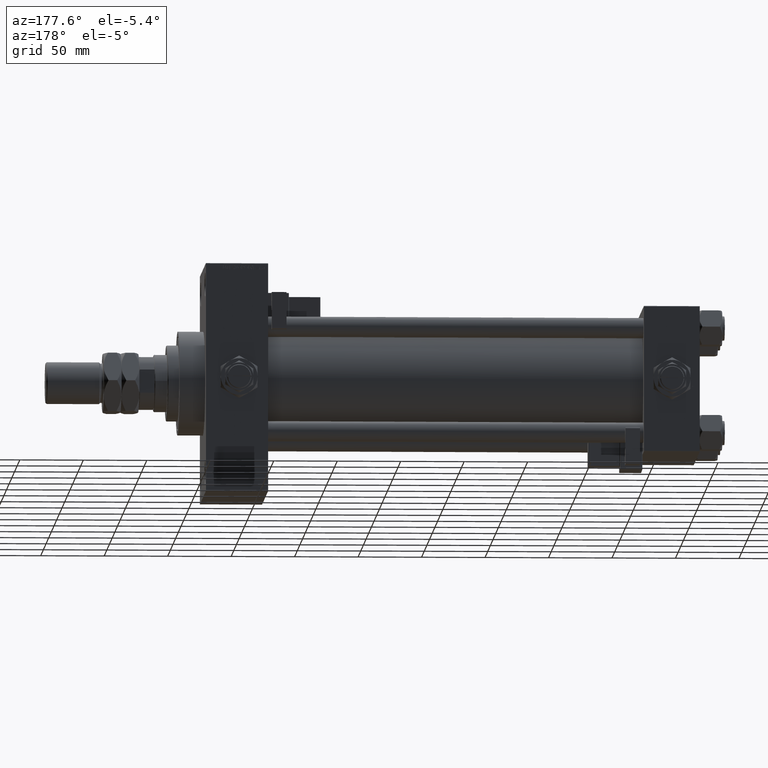
[diagram: clean part render]
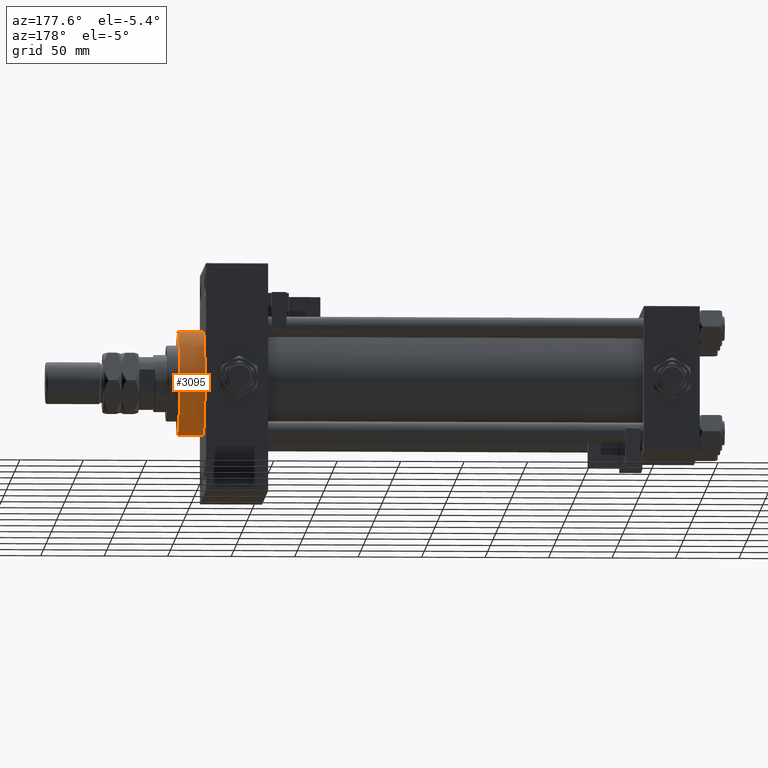
[diagram: same view with one face highlighted and labeled with its STEP entity id]
A machine part, auxiliary view. The second image highlights one B-rep face of the part: STEP entity #3095.
In plain terms, the highlighted cylindrical surface (partial cylindrical patch) has radius 41 mm, axis along (-1, -0, -0).
Its self-contained STEP definition (entity closure, byte-faithful):
#3095 = ADVANCED_FACE ( 'NONE', ( #49939 ), #25168, .T. ) ;
#5987 = CARTESIAN_POINT ( 'NONE',  ( 409.0000000000000000, 0.000000000000000000, 41.00000000000000000 ) ) ;
#7053 = LINE ( 'NONE', #5987, #30911 ) ;
#7432 = AXIS2_PLACEMENT_3D ( 'NONE', #43290, #31839, #9801 ) ;
#9584 = EDGE_CURVE ( 'NONE', #20635, #28909, #28321, .T. ) ;
#9801 = DIRECTION ( 'NONE',  ( 0.000000000000000000, 0.000000000000000000, -1.000000000000000000 ) ) ;
#12629 = CIRCLE ( 'NONE', #7432, 41.00000000000000000 ) ;
#15516 = DIRECTION ( 'NONE',  ( -1.000000000000000000, -0.000000000000000000, -0.000000000000000000 ) ) ;
#18292 = ORIENTED_EDGE ( 'NONE', *, *, #9584, .T. ) ;
#18718 = ORIENTED_EDGE ( 'NONE', *, *, #44330, .T. ) ;
#20635 = VERTEX_POINT ( 'NONE', #23357 ) ;
#21638 = CARTESIAN_POINT ( 'NONE',  ( 409.0000000000000000, 0.000000000000000000, 0.000000000000000000 ) ) ;
#23357 = CARTESIAN_POINT ( 'NONE',  ( 409.0000000000000000, 5.021051876504148963E-15, -41.00000000000000000 ) ) ;
#23695 = DIRECTION ( 'NONE',  ( -1.000000000000000000, -0.000000000000000000, -0.000000000000000000 ) ) ;
#25168 = CYLINDRICAL_SURFACE ( 'NONE', #53425, 41.00000000000000000 ) ;
#25809 = ORIENTED_EDGE ( 'NONE', *, *, #41295, .F. ) ;
#25986 = DIRECTION ( 'NONE',  ( -1.000000000000000000, -0.000000000000000000, -0.000000000000000000 ) ) ;
#26996 = EDGE_CURVE ( 'NONE', #20635, #30079, #43330, .T. ) ;
#28321 = LINE ( 'NONE', #39009, #40997 ) ;
#28909 = VERTEX_POINT ( 'NONE', #43318 ) ;
#30079 = VERTEX_POINT ( 'NONE', #31568 ) ;
#30911 = VECTOR ( 'NONE', #23695, 1000.000000000000000 ) ;
#31568 = CARTESIAN_POINT ( 'NONE',  ( 409.0000000000000000, 0.000000000000000000, 41.00000000000000000 ) ) ;
#31839 = DIRECTION ( 'NONE',  ( 1.000000000000000000, 0.000000000000000000, 0.000000000000000000 ) ) ;
#32879 = EDGE_LOOP ( 'NONE', ( #43182, #18292, #18718, #25809 ) ) ;
#33650 = CARTESIAN_POINT ( 'NONE',  ( 388.9999999999999432, 0.000000000000000000, 41.00000000000000000 ) ) ;
#36803 = CARTESIAN_POINT ( 'NONE',  ( 409.0000000000000000, 0.000000000000000000, 0.000000000000000000 ) ) ;
#39009 = CARTESIAN_POINT ( 'NONE',  ( 409.0000000000000000, 5.021051876504148963E-15, -41.00000000000000000 ) ) ;
#40616 = DIRECTION ( 'NONE',  ( 0.000000000000000000, 0.000000000000000000, -1.000000000000000000 ) ) ;
#40997 = VECTOR ( 'NONE', #15516, 1000.000000000000000 ) ;
#41295 = EDGE_CURVE ( 'NONE', #30079, #49084, #7053, .T. ) ;
#41564 = AXIS2_PLACEMENT_3D ( 'NONE', #36803, #53431, #40616 ) ;
#43182 = ORIENTED_EDGE ( 'NONE', *, *, #26996, .F. ) ;
#43290 = CARTESIAN_POINT ( 'NONE',  ( 388.9999999999999432, 0.000000000000000000, 0.000000000000000000 ) ) ;
#43318 = CARTESIAN_POINT ( 'NONE',  ( 388.9999999999999432, 5.021051876504148963E-15, -41.00000000000000000 ) ) ;
#43330 = CIRCLE ( 'NONE', #41564, 41.00000000000000000 ) ;
#44330 = EDGE_CURVE ( 'NONE', #28909, #49084, #12629, .T. ) ;
#46653 = DIRECTION ( 'NONE',  ( 0.000000000000000000, 0.000000000000000000, 1.000000000000000000 ) ) ;
#49084 = VERTEX_POINT ( 'NONE', #33650 ) ;
#49939 = FACE_OUTER_BOUND ( 'NONE', #32879, .T. ) ;
#53425 = AXIS2_PLACEMENT_3D ( 'NONE', #21638, #25986, #46653 ) ;
#53431 = DIRECTION ( 'NONE',  ( 1.000000000000000000, 0.000000000000000000, 0.000000000000000000 ) ) ;